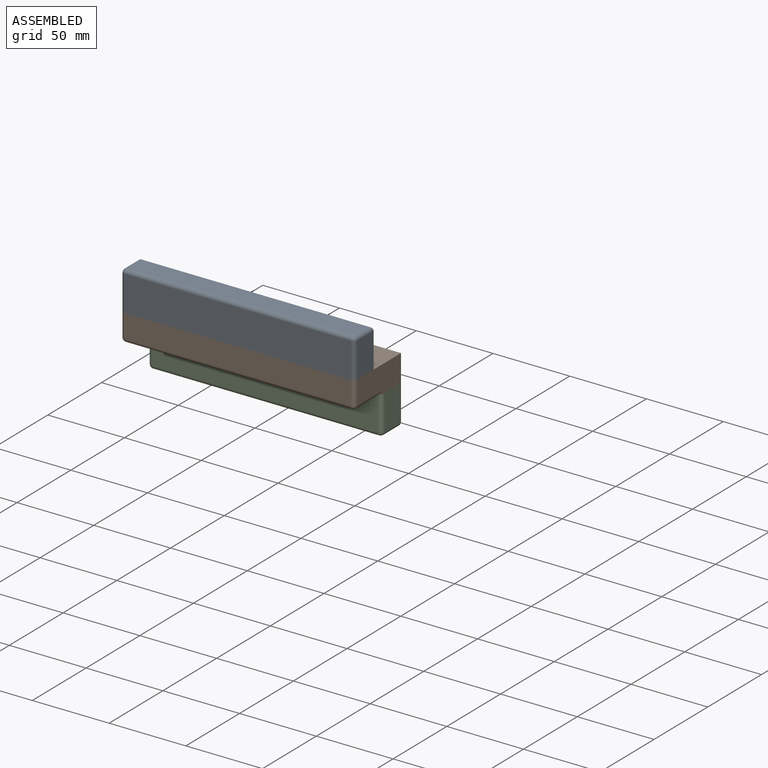
[diagram: assembled view]
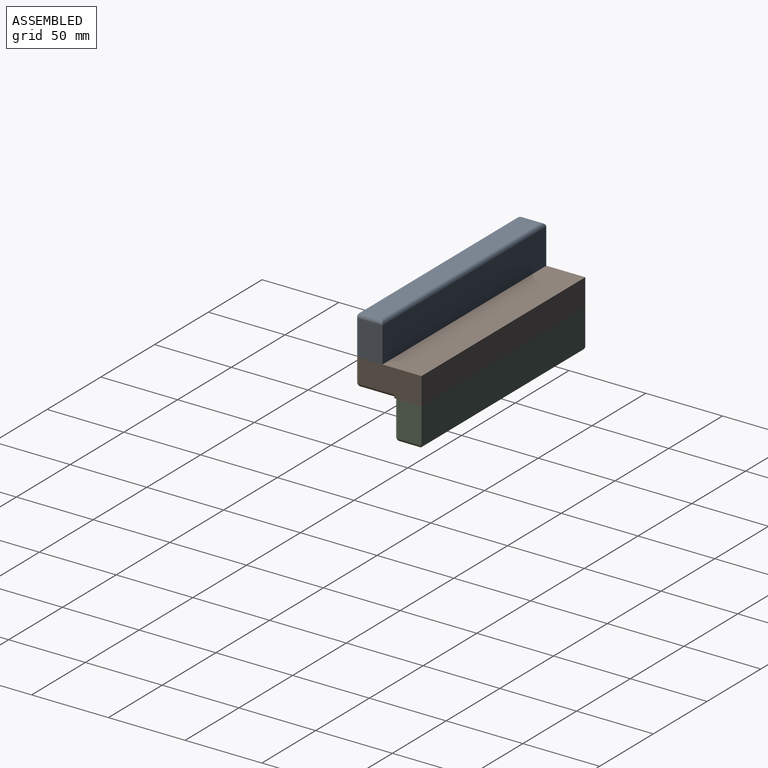
[diagram: assembled view, second angle]
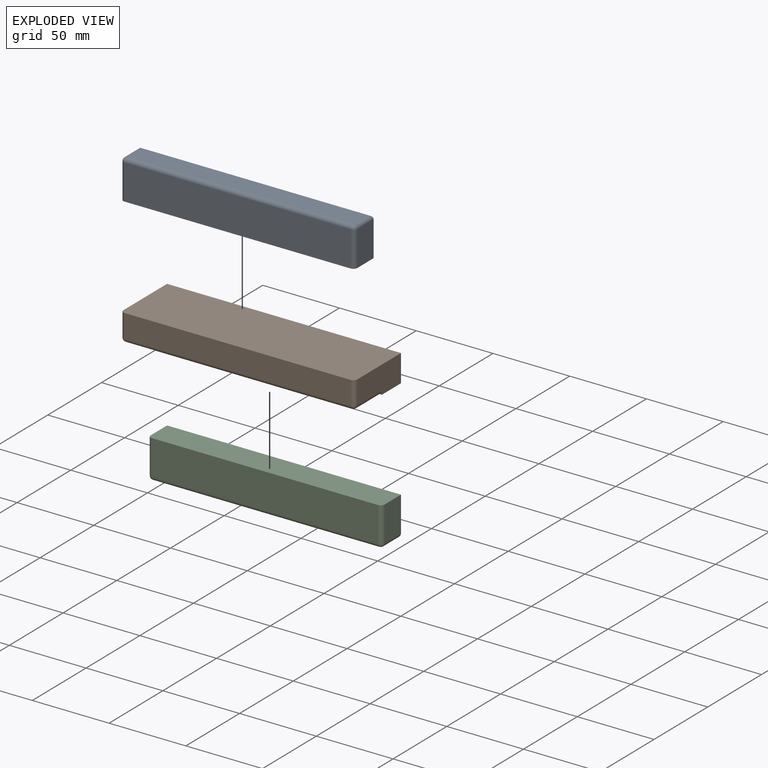
[diagram: exploded view]
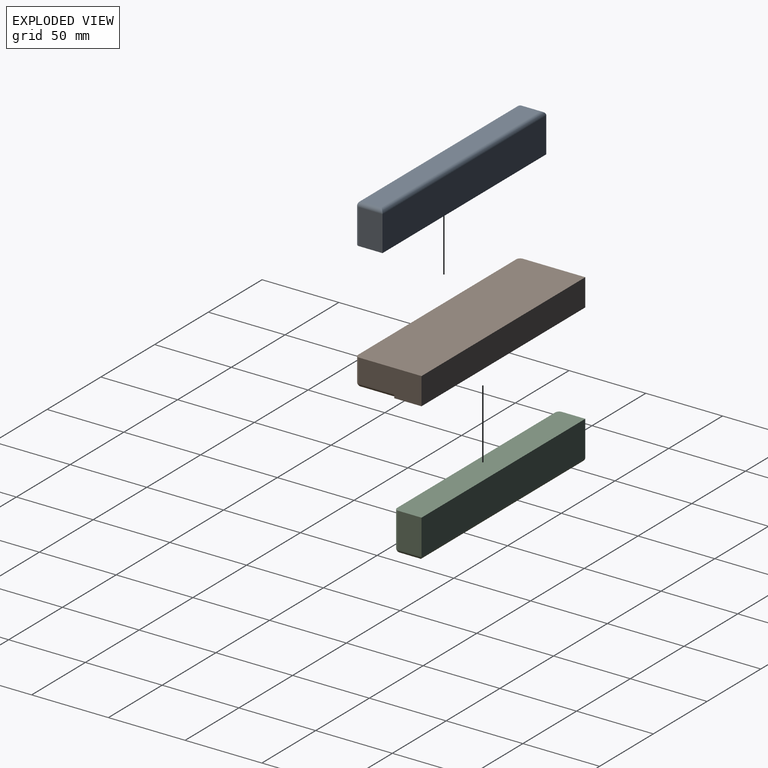
[diagram: exploded view, second angle]
ASSEMBLY  parts=3 mates=6
PART A: 14 faces, bbox 152.4x17.8x25.4 mm
  f0: plane 152.4x17.78mm, normal (0,0,-1), area 2706.9mm2, adj f1,f3,f4,f5,f6,f8
  f1: plane 22.86x15.24mm, normal (1,0,0), area 348.4mm2, adj f0,f5,f8,f13
  f2: plane 147.32x12.7mm, normal (0,0,1), area 1871mm2, adj f9,f10,f12,f13
  f3: plane 22.86x15.24mm, normal (-1,0,0), area 348.4mm2, adj f0,f5,f6,f10
  f4: plane 147.32x22.86mm, normal (0,-1,0), area 3367.7mm2, adj f0,f6,f8,f9
  f5: plane 152.4x22.86mm, normal (0,1,0), area 3483.9mm2, adj f0,f1,f3,f12
  f6: cylinder r=2.54mm len=22.86mm, axis (0,0,1), area 91.2mm2, adj f0,f3,f4,f7
  f7: sphere r=2.54mm, area 10.1mm2, adj f6,f9,f10
  f8: cylinder r=2.54mm len=22.86mm, axis (0,0,-1), area 91.2mm2, adj f0,f1,f4,f11
  f9: cylinder r=2.54mm len=147.32mm, axis (1,0,0), area 587.8mm2, adj f2,f4,f7,f11
  f10: cylinder r=2.54mm len=15.24mm, axis (0,-1,0), area 57.1mm2, adj f2,f3,f7,f12
  f11: sphere r=2.54mm, area 10.1mm2, adj f8,f9,f13
  f12: cylinder r=2.54mm len=152.4mm, axis (-1,0,0), area 600.7mm2, adj f2,f5,f10,f13
  f13: cylinder r=2.54mm len=15.24mm, axis (0,1,0), area 57.1mm2, adj f1,f2,f11,f12
PART B: 17 faces, bbox 152.4x43.2x17.8 mm
  f0: plane 22.86x15.24mm, normal (-1,0,0), area 348.4mm2, adj f4,f8,f14,f16
  f1: plane 147.32x15.24mm, normal (0,-1,0), area 2245.2mm2, adj f4,f10,f13,f16
  f2: plane 22.86x15.24mm, normal (1,0,0), area 348.4mm2, adj f4,f6,f10,f11
  f3: plane 152.41x17.78mm, normal (0,1,0), area 2709.8mm2, adj f4,f5,f7,f9
  f4: plane 152.41x43.18mm, normal (0,0,1), area 6578mm2, adj f0,f1,f2,f3,f6,f7,f8,f9
  f5: plane 152.41x40.64mm, normal (0,0,-1), area 6077.5mm2, adj f3,f6,f7,f8,f9,f11,f13,f14
  f6: plane 17.78x2.54mm, normal (0,-1,0), area 1.4mm2, adj f2,f4,f5,f7,f11
  f7: plane 17.78x17.78mm, normal (1,0,0), area 316.1mm2, adj f3,f4,f5,f6
  f8: plane 17.78x2.54mm, normal (0,-1,0), area 1.4mm2, adj f0,f4,f5,f9,f14
  f9: plane 17.78x17.78mm, normal (-1,0,0), area 316.1mm2, adj f3,f4,f5,f8
  f10: cylinder r=2.54mm len=15.24mm, axis (0,0,-1), area 60.8mm2, adj f1,f2,f4,f12
  f11: cylinder r=2.54mm len=22.86mm, axis (0,1,0), area 91.2mm2, adj f2,f5,f6,f12
  f12: sphere r=2.54mm, area 10.1mm2, adj f10,f11,f13
  f13: cylinder r=2.54mm len=147.32mm, axis (1,0,0), area 587.8mm2, adj f1,f5,f12,f15
  f14: cylinder r=2.54mm len=22.86mm, axis (0,-1,0), area 91.2mm2, adj f0,f5,f8,f15
  f15: sphere r=2.54mm, area 10.1mm2, adj f13,f14,f16
  f16: cylinder r=2.54mm len=15.24mm, axis (0,0,1), area 60.8mm2, adj f0,f1,f4,f15
PART C: same geometry as A
PLACE A t=(20.35,-48.85,25.31)mm
PLACE B t=(20.35,-45.04,-5.17)mm fixed
PLACE C rot(axis=(0,-1,0),180deg) t=(20.35,-23.45,-17.87)mm
MATE planar B.f4 <-> A.f0  axis (0,0,1) through (20.35,-45.03,12.61)mm
MATE planar B.f2 <-> C.f3  axis (1,0,0) through (96.55,-52.66,4.99)mm
MATE planar B.f5 <-> C.f0  axis (0,0,-1) through (20.35,-43.6,-5.17)mm
MATE planar B.f3 <-> C.f5  axis (0,1,0) through (20.35,-23.45,3.72)mm
MATE planar A.f4 <-> B.f1  axis (0,-1,0) through (20.35,-66.63,24.04)mm
MATE planar B.f2 <-> A.f1  axis (1,0,0) through (96.55,-52.66,4.99)mm
